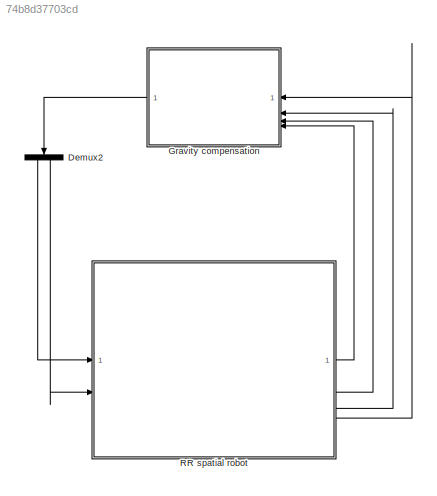
MODEL slx_74b8d37703cd
KIND model
CONFIG AbsTol = auto
CONFIG EnableMultiTasking = off
CONFIG FixedStep = auto
CONFIG MaxStep = auto
CONFIG MinStep = auto
CONFIG RelTol = 1e-3
CONFIG SampleTimeConstraint = Unconstrained
CONFIG SolverName = VariableStepAuto
CONFIG StartTime = 0.0
CONFIG StopTime = 10.0
BLOCK [Demux] Demux2
  NameLocation = left
  Outputs = 2
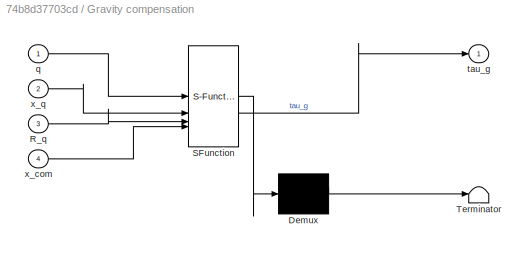
BLOCK [SubSystem] Gravity compensation
  ErrorFcn = Stateflow.Translate.translate
  PermitHierarchicalResolution = ExplicitOnly
  SFBlockType = MATLAB Function
  TreatAsAtomicUnit = on
BLOCK [Demux] Gravity compensation/ Demux 
  Outputs = 1
BLOCK [S-Function] Gravity compensation/ SFunction 
  EnableBusSupport = on
  FunctionName = sf_sfun
  PortCounts = [4 2]
  SFcnIsStateOwnerBlock = off
  SFunctionDeploymentMode = off
  Tag = Stateflow S-Function 3
BLOCK [Terminator] Gravity compensation/ Terminator 
BLOCK [Inport] Gravity compensation/R_q
  Port = 3
BLOCK [Inport] Gravity compensation/q
BLOCK [Outport] Gravity compensation/tau_g
BLOCK [Inport] Gravity compensation/x_com
  Port = 4
BLOCK [Inport] Gravity compensation/x_q
  Port = 2
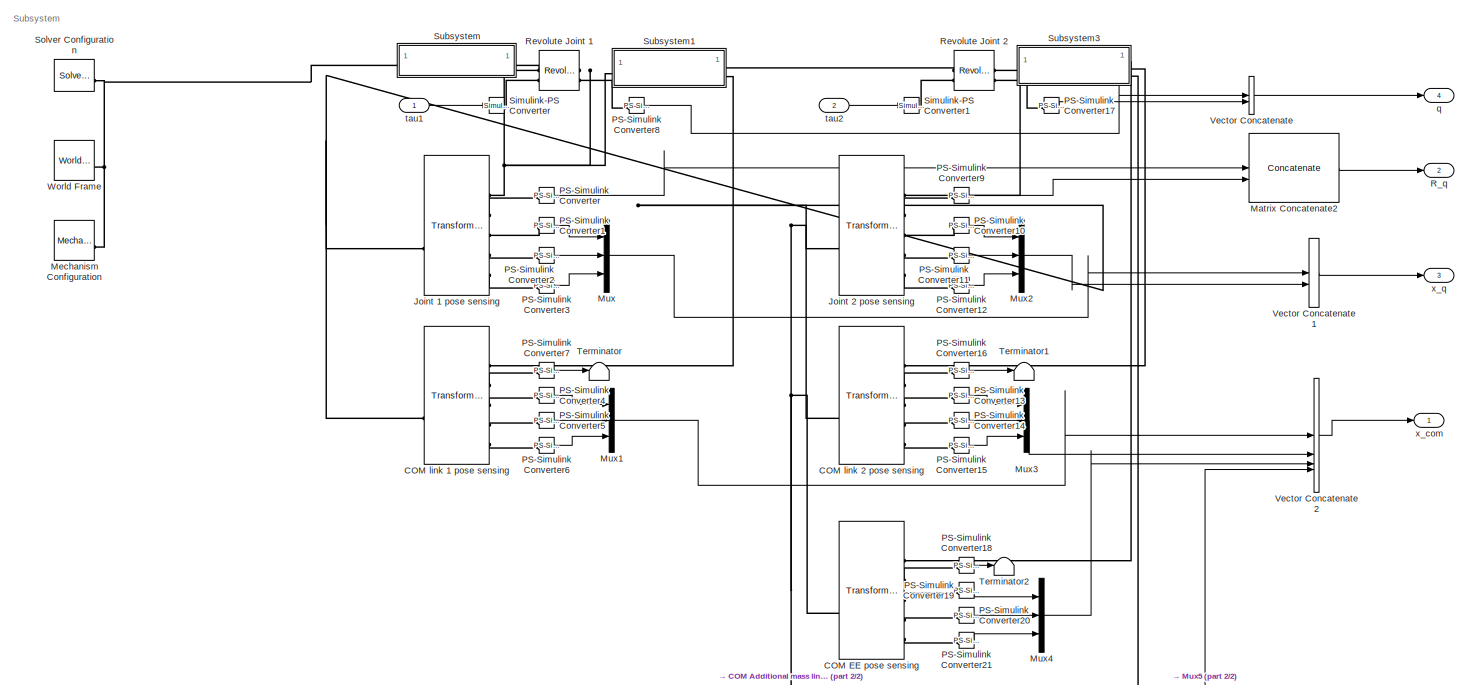
[diagram: RR spatial robot - part 1/2, most of the canvas]
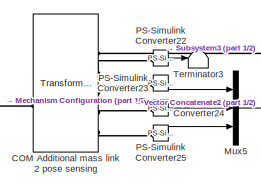
[diagram: RR spatial robot - part 2/2, bottom center region]
BLOCK [SubSystem] RR spatial robot
BLOCK [Reference] RR spatial robot/COM Additional mass link 2 pose sensing  REF=sm_lib/Frames and
Transforms/Transform
Sensor
  SourceBlock = sm_lib/Frames and\nTransforms/Transform\nSensor
  SourceType = Transform\nSensor
BLOCK [Reference] RR spatial robot/COM EE pose sensing  REF=sm_lib/Frames and
Transforms/Transform
Sensor
  SourceBlock = sm_lib/Frames and\nTransforms/Transform\nSensor
  SourceType = Transform\nSensor
BLOCK [Reference] RR spatial robot/COM link 1 pose sensing  REF=sm_lib/Frames and
Transforms/Transform
Sensor
  SourceBlock = sm_lib/Frames and\nTransforms/Transform\nSensor
  SourceType = Transform\nSensor
BLOCK [Reference] RR spatial robot/COM link 2 pose sensing  REF=sm_lib/Frames and
Transforms/Transform
Sensor
  SourceBlock = sm_lib/Frames and\nTransforms/Transform\nSensor
  SourceType = Transform\nSensor
BLOCK [Reference] RR spatial robot/Joint 1 pose sensing  REF=sm_lib/Frames and
Transforms/Transform
Sensor
  SourceBlock = sm_lib/Frames and\nTransforms/Transform\nSensor
  SourceType = Transform\nSensor
BLOCK [Reference] RR spatial robot/Joint 2 pose sensing  REF=sm_lib/Frames and
Transforms/Transform
Sensor
  SourceBlock = sm_lib/Frames and\nTransforms/Transform\nSensor
  SourceType = Transform\nSensor
BLOCK [Concatenate] RR spatial robot/Matrix Concatenate2
  ConcatenateDimension = 3
  Mode = Multidimensional array
BLOCK [Reference] RR spatial robot/Mechanism Configuration  REF=sm_lib/Utilities/Mechanism
Configuration
  SourceBlock = sm_lib/Utilities/Mechanism\nConfiguration
  SourceType = Mechanism\nConfiguration
BLOCK [Mux] RR spatial robot/Mux
  DisplayOption = bar
  Inputs = 3
BLOCK [Mux] RR spatial robot/Mux1
  DisplayOption = bar
  Inputs = 3
BLOCK [Mux] RR spatial robot/Mux2
  DisplayOption = bar
  Inputs = 3
BLOCK [Mux] RR spatial robot/Mux3
  DisplayOption = bar
  Inputs = 3
BLOCK [Mux] RR spatial robot/Mux4
  DisplayOption = bar
  Inputs = 3
BLOCK [Mux] RR spatial robot/Mux5
  DisplayOption = bar
  Inputs = 3
BLOCK [Reference] RR spatial robot/PS-Simulink Converter  REF=nesl_utility/PS-Simulink
Converter
  SourceBlock = nesl_utility/PS-Simulink\nConverter
  SourceType = PS-Simulink\nConverter
BLOCK [Reference] RR spatial robot/PS-Simulink Converter1  REF=nesl_utility/PS-Simulink
Converter
  SourceBlock = nesl_utility/PS-Simulink\nConverter
  SourceType = PS-Simulink\nConverter
BLOCK [Reference] RR spatial robot/PS-Simulink Converter10  REF=nesl_utility/PS-Simulink
Converter
  SourceBlock = nesl_utility/PS-Simulink\nConverter
  SourceType = PS-Simulink\nConverter
BLOCK [Reference] RR spatial robot/PS-Simulink Converter11  REF=nesl_utility/PS-Simulink
Converter
  SourceBlock = nesl_utility/PS-Simulink\nConverter
  SourceType = PS-Simulink\nConverter
BLOCK [Reference] RR spatial robot/PS-Simulink Converter12  REF=nesl_utility/PS-Simulink
Converter
  SourceBlock = nesl_utility/PS-Simulink\nConverter
  SourceType = PS-Simulink\nConverter
BLOCK [Reference] RR spatial robot/PS-Simulink Converter13  REF=nesl_utility/PS-Simulink
Converter
  SourceBlock = nesl_utility/PS-Simulink\nConverter
  SourceType = PS-Simulink\nConverter
BLOCK [Reference] RR spatial robot/PS-Simulink Converter14  REF=nesl_utility/PS-Simulink
Converter
  SourceBlock = nesl_utility/PS-Simulink\nConverter
  SourceType = PS-Simulink\nConverter
BLOCK [Reference] RR spatial robot/PS-Simulink Converter15  REF=nesl_utility/PS-Simulink
Converter
  SourceBlock = nesl_utility/PS-Simulink\nConverter
  SourceType = PS-Simulink\nConverter
BLOCK [Reference] RR spatial robot/PS-Simulink Converter16  REF=nesl_utility/PS-Simulink
Converter
  SourceBlock = nesl_utility/PS-Simulink\nConverter
  SourceType = PS-Simulink\nConverter
BLOCK [Reference] RR spatial robot/PS-Simulink Converter17  REF=nesl_utility/PS-Simulink
Converter
  SourceBlock = nesl_utility/PS-Simulink\nConverter
  SourceType = PS-Simulink\nConverter
BLOCK [Reference] RR spatial robot/PS-Simulink Converter18  REF=nesl_utility/PS-Simulink
Converter
  SourceBlock = nesl_utility/PS-Simulink\nConverter
  SourceType = PS-Simulink\nConverter
BLOCK [Reference] RR spatial robot/PS-Simulink Converter19  REF=nesl_utility/PS-Simulink
Converter
  SourceBlock = nesl_utility/PS-Simulink\nConverter
  SourceType = PS-Simulink\nConverter
BLOCK [Reference] RR spatial robot/PS-Simulink Converter2  REF=nesl_utility/PS-Simulink
Converter
  SourceBlock = nesl_utility/PS-Simulink\nConverter
  SourceType = PS-Simulink\nConverter
BLOCK [Reference] RR spatial robot/PS-Simulink Converter20  REF=nesl_utility/PS-Simulink
Converter
  SourceBlock = nesl_utility/PS-Simulink\nConverter
  SourceType = PS-Simulink\nConverter
BLOCK [Reference] RR spatial robot/PS-Simulink Converter21  REF=nesl_utility/PS-Simulink
Converter
  SourceBlock = nesl_utility/PS-Simulink\nConverter
  SourceType = PS-Simulink\nConverter
BLOCK [Reference] RR spatial robot/PS-Simulink Converter22  REF=nesl_utility/PS-Simulink
Converter
  SourceBlock = nesl_utility/PS-Simulink\nConverter
  SourceType = PS-Simulink\nConverter
BLOCK [Reference] RR spatial robot/PS-Simulink Converter23  REF=nesl_utility/PS-Simulink
Converter
  SourceBlock = nesl_utility/PS-Simulink\nConverter
  SourceType = PS-Simulink\nConverter
BLOCK [Reference] RR spatial robot/PS-Simulink Converter24  REF=nesl_utility/PS-Simulink
Converter
  SourceBlock = nesl_utility/PS-Simulink\nConverter
  SourceType = PS-Simulink\nConverter
BLOCK [Reference] RR spatial robot/PS-Simulink Converter25  REF=nesl_utility/PS-Simulink
Converter
  SourceBlock = nesl_utility/PS-Simulink\nConverter
  SourceType = PS-Simulink\nConverter
BLOCK [Reference] RR spatial robot/PS-Simulink Converter3  REF=nesl_utility/PS-Simulink
Converter
  SourceBlock = nesl_utility/PS-Simulink\nConverter
  SourceType = PS-Simulink\nConverter
BLOCK [Reference] RR spatial robot/PS-Simulink Converter4  REF=nesl_utility/PS-Simulink
Converter
  SourceBlock = nesl_utility/PS-Simulink\nConverter
  SourceType = PS-Simulink\nConverter
BLOCK [Reference] RR spatial robot/PS-Simulink Converter5  REF=nesl_utility/PS-Simulink
Converter
  SourceBlock = nesl_utility/PS-Simulink\nConverter
  SourceType = PS-Simulink\nConverter
BLOCK [Reference] RR spatial robot/PS-Simulink Converter6  REF=nesl_utility/PS-Simulink
Converter
  SourceBlock = nesl_utility/PS-Simulink\nConverter
  SourceType = PS-Simulink\nConverter
BLOCK [Reference] RR spatial robot/PS-Simulink Converter7  REF=nesl_utility/PS-Simulink
Converter
  SourceBlock = nesl_utility/PS-Simulink\nConverter
  SourceType = PS-Simulink\nConverter
BLOCK [Reference] RR spatial robot/PS-Simulink Converter8  REF=nesl_utility/PS-Simulink
Converter
  SourceBlock = nesl_utility/PS-Simulink\nConverter
  SourceType = PS-Simulink\nConverter
BLOCK [Reference] RR spatial robot/PS-Simulink Converter9  REF=nesl_utility/PS-Simulink
Converter
  SourceBlock = nesl_utility/PS-Simulink\nConverter
  SourceType = PS-Simulink\nConverter
BLOCK [Outport] RR spatial robot/R_q
  Port = 2
BLOCK [Reference] RR spatial robot/Revolute Joint 1  REF=sm_lib/Joints/Revolute Joint
  SourceBlock = sm_lib/Joints/Revolute Joint
  SourceType = Revolute Joint
BLOCK [Reference] RR spatial robot/Revolute Joint 2  REF=sm_lib/Joints/Revolute Joint
  SourceBlock = sm_lib/Joints/Revolute Joint
  SourceType = Revolute Joint
BLOCK [Reference] RR spatial robot/Simulink-PS Converter  REF=nesl_utility/Simulink-PS
Converter
  SourceBlock = nesl_utility/Simulink-PS\nConverter
  SourceType = Simulink-PS\nConverter
BLOCK [Reference] RR spatial robot/Simulink-PS Converter1  REF=nesl_utility/Simulink-PS
Converter
  SourceBlock = nesl_utility/Simulink-PS\nConverter
  SourceType = Simulink-PS\nConverter
BLOCK [Reference] RR spatial robot/Solver Configuration  REF=nesl_utility/Solver
Configuration
  SourceBlock = nesl_utility/Solver\nConfiguration
  SourceType = Solver\nConfiguration
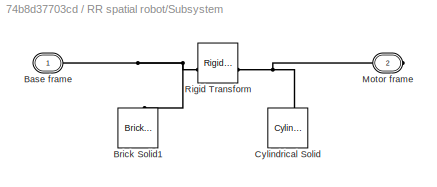
BLOCK [SubSystem] RR spatial robot/Subsystem
BLOCK [PMIOPort] RR spatial robot/Subsystem/Base frame
  Side = Left
BLOCK [Reference] RR spatial robot/Subsystem/Brick Solid1  REF=sm_lib/Body Elements/Brick Solid
  NameLocation = right
  SourceBlock = sm_lib/Body Elements/Brick Solid
  SourceType = Brick Solid
BLOCK [Reference] RR spatial robot/Subsystem/Cylindrical Solid  REF=sm_lib/Body Elements/Cylindrical Solid
  NameLocation = right
  SourceBlock = sm_lib/Body Elements/Cylindrical Solid
  SourceType = Cylindrical Solid
BLOCK [PMIOPort] RR spatial robot/Subsystem/Motor frame
  Port = 2
  Side = Right
BLOCK [Reference] RR spatial robot/Subsystem/Rigid Transform  REF=sm_lib/Frames and
Transforms/Rigid
Transform
  SourceBlock = sm_lib/Frames and\nTransforms/Rigid\nTransform
  SourceType = Rigid\nTransform
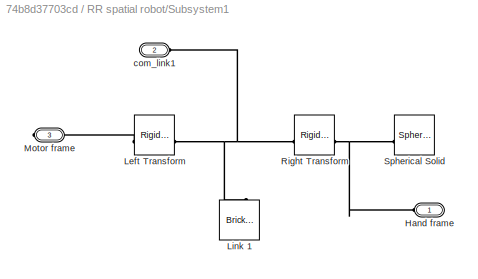
BLOCK [SubSystem] RR spatial robot/Subsystem1
  NameLocation = top
BLOCK [PMIOPort] RR spatial robot/Subsystem1/Hand frame
  Side = Left
BLOCK [Reference] RR spatial robot/Subsystem1/Left Transform  REF=sm_lib/Frames and
Transforms/Rigid
Transform
  SourceBlock = sm_lib/Frames and\nTransforms/Rigid\nTransform
  SourceType = Rigid\nTransform
BLOCK [Reference] RR spatial robot/Subsystem1/Link 1  REF=sm_lib/Body Elements/Brick Solid
  NameLocation = right
  SourceBlock = sm_lib/Body Elements/Brick Solid
  SourceType = Brick Solid
BLOCK [PMIOPort] RR spatial robot/Subsystem1/Motor frame
  Port = 3
  Side = Right
BLOCK [Reference] RR spatial robot/Subsystem1/Right Transform  REF=sm_lib/Frames and
Transforms/Rigid
Transform
  SourceBlock = sm_lib/Frames and\nTransforms/Rigid\nTransform
  SourceType = Rigid\nTransform
BLOCK [Reference] RR spatial robot/Subsystem1/Spherical Solid  REF=sm_lib/Body Elements/Spherical Solid
  SourceBlock = sm_lib/Body Elements/Spherical Solid
  SourceType = Spherical Solid
BLOCK [PMIOPort] RR spatial robot/Subsystem1/com_link1
  Port = 2
  Side = Left
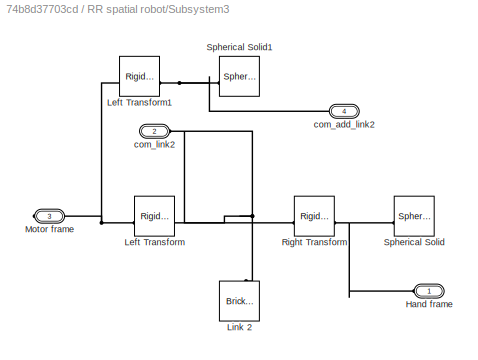
BLOCK [SubSystem] RR spatial robot/Subsystem3
  NameLocation = top
BLOCK [PMIOPort] RR spatial robot/Subsystem3/Hand frame
  Side = Left
BLOCK [Reference] RR spatial robot/Subsystem3/Left Transform  REF=sm_lib/Frames and
Transforms/Rigid
Transform
  SourceBlock = sm_lib/Frames and\nTransforms/Rigid\nTransform
  SourceType = Rigid\nTransform
BLOCK [Reference] RR spatial robot/Subsystem3/Left Transform1  REF=sm_lib/Frames and
Transforms/Rigid
Transform
  SourceBlock = sm_lib/Frames and\nTransforms/Rigid\nTransform
  SourceType = Rigid\nTransform
BLOCK [Reference] RR spatial robot/Subsystem3/Link 2  REF=sm_lib/Body Elements/Brick Solid
  NameLocation = right
  SourceBlock = sm_lib/Body Elements/Brick Solid
  SourceType = Brick Solid
BLOCK [PMIOPort] RR spatial robot/Subsystem3/Motor frame
  Port = 3
  Side = Right
BLOCK [Reference] RR spatial robot/Subsystem3/Right Transform  REF=sm_lib/Frames and
Transforms/Rigid
Transform
  SourceBlock = sm_lib/Frames and\nTransforms/Rigid\nTransform
  SourceType = Rigid\nTransform
BLOCK [Reference] RR spatial robot/Subsystem3/Spherical Solid  REF=sm_lib/Body Elements/Spherical Solid
  SourceBlock = sm_lib/Body Elements/Spherical Solid
  SourceType = Spherical Solid
BLOCK [Reference] RR spatial robot/Subsystem3/Spherical Solid1  REF=sm_lib/Body Elements/Spherical Solid
  SourceBlock = sm_lib/Body Elements/Spherical Solid
  SourceType = Spherical Solid
BLOCK [PMIOPort] RR spatial robot/Subsystem3/com_add_link2
  Port = 4
  Side = Left
BLOCK [PMIOPort] RR spatial robot/Subsystem3/com_link2
  Port = 2
  Side = Left
BLOCK [Terminator] RR spatial robot/Terminator
BLOCK [Terminator] RR spatial robot/Terminator1
BLOCK [Terminator] RR spatial robot/Terminator2
BLOCK [Terminator] RR spatial robot/Terminator3
BLOCK [Concatenate] RR spatial robot/Vector Concatenate
  ConcatenateDimension = 2
  Mode = Multidimensional array
BLOCK [Concatenate] RR spatial robot/Vector Concatenate1
  ConcatenateDimension = 2
  Mode = Multidimensional array
BLOCK [Concatenate] RR spatial robot/Vector Concatenate2
  ConcatenateDimension = 2
  Mode = Multidimensional array
  NumInputs = 4
BLOCK [Reference] RR spatial robot/World Frame  REF=sm_lib/Frames and
Transforms/World Frame
  SourceBlock = sm_lib/Frames and\nTransforms/World Frame
  SourceType = World Frame
BLOCK [Outport] RR spatial robot/q
  Port = 4
BLOCK [Inport] RR spatial robot/tau1
BLOCK [Inport] RR spatial robot/tau2
  Port = 2
BLOCK [Outport] RR spatial robot/x_com
BLOCK [Outport] RR spatial robot/x_q
  Port = 3
ANNOTATION RR spatial robot: Subsystem
LINE Demux2:1 -> RR spatial robot:1
LINE Demux2:2 -> RR spatial robot:2
LINE Gravity compensation:1 -> Demux2:1
LINE RR spatial robot/Matrix Concatenate2:1 -> RR spatial robot/R_q:1
LINE RR spatial robot/Mux1:1 -> RR spatial robot/Vector Concatenate2:1
LINE RR spatial robot/Mux2:1 -> RR spatial robot/Vector Concatenate1:2
LINE RR spatial robot/Mux3:1 -> RR spatial robot/Vector Concatenate2:2
LINE RR spatial robot/Mux4:1 -> RR spatial robot/Vector Concatenate2:3
LINE RR spatial robot/Mux5:1 -> RR spatial robot/Vector Concatenate2:4
LINE RR spatial robot/Mux:1 -> RR spatial robot/Vector Concatenate1:1
LINE RR spatial robot/PS-Simulink Converter10:1 -> RR spatial robot/Mux2:1
LINE RR spatial robot/PS-Simulink Converter11:1 -> RR spatial robot/Mux2:2
LINE RR spatial robot/PS-Simulink Converter12:1 -> RR spatial robot/Mux2:3
LINE RR spatial robot/PS-Simulink Converter13:1 -> RR spatial robot/Mux3:1
LINE RR spatial robot/PS-Simulink Converter14:1 -> RR spatial robot/Mux3:2
LINE RR spatial robot/PS-Simulink Converter15:1 -> RR spatial robot/Mux3:3
LINE RR spatial robot/PS-Simulink Converter16:1 -> RR spatial robot/Terminator1:1
LINE RR spatial robot/PS-Simulink Converter17:1 -> RR spatial robot/Vector Concatenate:2
LINE RR spatial robot/PS-Simulink Converter18:1 -> RR spatial robot/Terminator2:1
LINE RR spatial robot/PS-Simulink Converter19:1 -> RR spatial robot/Mux4:1
LINE RR spatial robot/PS-Simulink Converter1:1 -> RR spatial robot/Mux:1
LINE RR spatial robot/PS-Simulink Converter20:1 -> RR spatial robot/Mux4:2
LINE RR spatial robot/PS-Simulink Converter21:1 -> RR spatial robot/Mux4:3
LINE RR spatial robot/PS-Simulink Converter22:1 -> RR spatial robot/Terminator3:1
LINE RR spatial robot/PS-Simulink Converter23:1 -> RR spatial robot/Mux5:1
LINE RR spatial robot/PS-Simulink Converter24:1 -> RR spatial robot/Mux5:2
LINE RR spatial robot/PS-Simulink Converter25:1 -> RR spatial robot/Mux5:3
LINE RR spatial robot/PS-Simulink Converter2:1 -> RR spatial robot/Mux:2
LINE RR spatial robot/PS-Simulink Converter3:1 -> RR spatial robot/Mux:3
LINE RR spatial robot/PS-Simulink Converter4:1 -> RR spatial robot/Mux1:1
LINE RR spatial robot/PS-Simulink Converter5:1 -> RR spatial robot/Mux1:2
LINE RR spatial robot/PS-Simulink Converter6:1 -> RR spatial robot/Mux1:3
LINE RR spatial robot/PS-Simulink Converter7:1 -> RR spatial robot/Terminator:1
LINE RR spatial robot/PS-Simulink Converter8:1 -> RR spatial robot/Vector Concatenate:1
LINE RR spatial robot/PS-Simulink Converter9:1 -> RR spatial robot/Matrix Concatenate2:2
LINE RR spatial robot/PS-Simulink Converter:1 -> RR spatial robot/Matrix Concatenate2:1
LINE RR spatial robot/Vector Concatenate1:1 -> RR spatial robot/x_q:1
LINE RR spatial robot/Vector Concatenate2:1 -> RR spatial robot/x_com:1
LINE RR spatial robot/Vector Concatenate:1 -> RR spatial robot/q:1
LINE RR spatial robot/tau1:1 -> RR spatial robot/Simulink-PS Converter:1
LINE RR spatial robot/tau2:1 -> RR spatial robot/Simulink-PS Converter1:1
LINE RR spatial robot:1 -> Gravity compensation:4
LINE RR spatial robot:2 -> Gravity compensation:3
LINE RR spatial robot:3 -> Gravity compensation:2
LINE RR spatial robot:4 -> Gravity compensation:1
PNET net1: RR spatial robot/COM Additional mass link 2 pose sensing:LConn1 -- RR spatial robot/COM EE pose sensing:LConn1 -- RR spatial robot/COM link 1 pose sensing:LConn1 -- RR spatial robot/COM link 2 pose sensing:LConn1 -- RR spatial robot/Joint 1 pose sensing:LConn1 -- RR spatial robot/Joint 2 pose sensing:LConn1 -- RR spatial robot/Mechanism Configuration:RConn1 -- RR spatial robot/Solver Configuration:RConn1 -- RR spatial robot/Subsystem:LConn1 -- RR spatial robot/World Frame:RConn1
PLINE RR spatial robot/COM Additional mass link 2 pose sensing:RConn1 -- RR spatial robot/Subsystem3:LConn3
PLINE RR spatial robot/COM Additional mass link 2 pose sensing:RConn2 -- RR spatial robot/PS-Simulink Converter22:LConn1
PLINE RR spatial robot/COM Additional mass link 2 pose sensing:RConn3 -- RR spatial robot/PS-Simulink Converter23:LConn1
PLINE RR spatial robot/COM Additional mass link 2 pose sensing:RConn4 -- RR spatial robot/PS-Simulink Converter24:LConn1
PLINE RR spatial robot/COM Additional mass link 2 pose sensing:RConn5 -- RR spatial robot/PS-Simulink Converter25:LConn1
PLINE RR spatial robot/COM EE pose sensing:RConn1 -- RR spatial robot/Subsystem3:LConn1
PLINE RR spatial robot/COM EE pose sensing:RConn2 -- RR spatial robot/PS-Simulink Converter18:LConn1
PLINE RR spatial robot/COM EE pose sensing:RConn3 -- RR spatial robot/PS-Simulink Converter19:LConn1
PLINE RR spatial robot/COM EE pose sensing:RConn4 -- RR spatial robot/PS-Simulink Converter20:LConn1
PLINE RR spatial robot/COM EE pose sensing:RConn5 -- RR spatial robot/PS-Simulink Converter21:LConn1
PLINE RR spatial robot/COM link 1 pose sensing:RConn1 -- RR spatial robot/Subsystem1:LConn2
PLINE RR spatial robot/COM link 1 pose sensing:RConn2 -- RR spatial robot/PS-Simulink Converter7:LConn1
PLINE RR spatial robot/COM link 1 pose sensing:RConn3 -- RR spatial robot/PS-Simulink Converter4:LConn1
PLINE RR spatial robot/COM link 1 pose sensing:RConn4 -- RR spatial robot/PS-Simulink Converter5:LConn1
PLINE RR spatial robot/COM link 1 pose sensing:RConn5 -- RR spatial robot/PS-Simulink Converter6:LConn1
PLINE RR spatial robot/COM link 2 pose sensing:RConn1 -- RR spatial robot/Subsystem3:LConn2
PLINE RR spatial robot/COM link 2 pose sensing:RConn2 -- RR spatial robot/PS-Simulink Converter16:LConn1
PLINE RR spatial robot/COM link 2 pose sensing:RConn3 -- RR spatial robot/PS-Simulink Converter13:LConn1
PLINE RR spatial robot/COM link 2 pose sensing:RConn4 -- RR spatial robot/PS-Simulink Converter14:LConn1
PLINE RR spatial robot/COM link 2 pose sensing:RConn5 -- RR spatial robot/PS-Simulink Converter15:LConn1
PNET net2: RR spatial robot/Joint 1 pose sensing:RConn1 -- RR spatial robot/Revolute Joint 1:RConn1 -- RR spatial robot/Subsystem1:RConn1
PLINE RR spatial robot/Joint 1 pose sensing:RConn2 -- RR spatial robot/PS-Simulink Converter:LConn1
PLINE RR spatial robot/Joint 1 pose sensing:RConn3 -- RR spatial robot/PS-Simulink Converter1:LConn1
PLINE RR spatial robot/Joint 1 pose sensing:RConn4 -- RR spatial robot/PS-Simulink Converter2:LConn1
PLINE RR spatial robot/Joint 1 pose sensing:RConn5 -- RR spatial robot/PS-Simulink Converter3:LConn1
PNET net3: RR spatial robot/Joint 2 pose sensing:RConn1 -- RR spatial robot/Revolute Joint 2:RConn1 -- RR spatial robot/Subsystem3:RConn1
PLINE RR spatial robot/Joint 2 pose sensing:RConn2 -- RR spatial robot/PS-Simulink Converter9:LConn1
PLINE RR spatial robot/Joint 2 pose sensing:RConn3 -- RR spatial robot/PS-Simulink Converter10:LConn1
PLINE RR spatial robot/Joint 2 pose sensing:RConn4 -- RR spatial robot/PS-Simulink Converter11:LConn1
PLINE RR spatial robot/Joint 2 pose sensing:RConn5 -- RR spatial robot/PS-Simulink Converter12:LConn1
PLINE RR spatial robot/PS-Simulink Converter17:LConn1 -- RR spatial robot/Revolute Joint 2:RConn2
PLINE RR spatial robot/PS-Simulink Converter8:LConn1 -- RR spatial robot/Revolute Joint 1:RConn2
PLINE RR spatial robot/Revolute Joint 1:LConn1 -- RR spatial robot/Subsystem:RConn1
PLINE RR spatial robot/Revolute Joint 1:LConn2 -- RR spatial robot/Simulink-PS Converter:RConn1
PLINE RR spatial robot/Revolute Joint 2:LConn1 -- RR spatial robot/Subsystem1:LConn1
PLINE RR spatial robot/Revolute Joint 2:LConn2 -- RR spatial robot/Simulink-PS Converter1:RConn1
PNET net4: RR spatial robot/Subsystem/Base frame:RConn1 -- RR spatial robot/Subsystem/Brick Solid1:RConn1 -- RR spatial robot/Subsystem/Rigid Transform:LConn1
PNET net5: RR spatial robot/Subsystem/Cylindrical Solid:RConn1 -- RR spatial robot/Subsystem/Motor frame:RConn1 -- RR spatial robot/Subsystem/Rigid Transform:RConn1
PNET net6: RR spatial robot/Subsystem1/Hand frame:RConn1 -- RR spatial robot/Subsystem1/Right Transform:RConn1 -- RR spatial robot/Subsystem1/Spherical Solid:RConn1
PLINE RR spatial robot/Subsystem1/Left Transform:LConn1 -- RR spatial robot/Subsystem1/Motor frame:RConn1
PNET net7: RR spatial robot/Subsystem1/Left Transform:RConn1 -- RR spatial robot/Subsystem1/Link 1:RConn1 -- RR spatial robot/Subsystem1/Right Transform:LConn1 -- RR spatial robot/Subsystem1/com_link1:RConn1
PNET net8: RR spatial robot/Subsystem3/Hand frame:RConn1 -- RR spatial robot/Subsystem3/Right Transform:RConn1 -- RR spatial robot/Subsystem3/Spherical Solid:RConn1
PNET net9: RR spatial robot/Subsystem3/Left Transform1:LConn1 -- RR spatial robot/Subsystem3/Left Transform:LConn1 -- RR spatial robot/Subsystem3/Motor frame:RConn1
PNET net10: RR spatial robot/Subsystem3/Left Transform1:RConn1 -- RR spatial robot/Subsystem3/Spherical Solid1:RConn1 -- RR spatial robot/Subsystem3/com_add_link2:RConn1
PNET net11: RR spatial robot/Subsystem3/Left Transform:RConn1 -- RR spatial robot/Subsystem3/Link 2:RConn1 -- RR spatial robot/Subsystem3/Right Transform:LConn1 -- RR spatial robot/Subsystem3/com_link2:RConn1
note: PNET lines group multi-terminal physical nets as a canonical sorted terminal list (undirected conserving connections); 2-terminal nets keep the pairwise PLINE form
CHART Gravity compensation states=1 transitions=1
  STATE_LABEL 'eML_blk_kernel()'
  STATE_LABEL "SCRIPT:\nfunction tau_g  = fcn(q, x_q, R_q, x_com)\n\n    jointType = [0,0];\n    m1 = 2; % mass of link 1\n    m2 = 6.5; % mass of link 2\n    m3 = 4.8; % end effector\n    m4 = 2.2; % additional mass on link 2\n    m = [m1+m2+m3+m4,m2+m3+m4];\n\n    x_com(:,1) = (x_com(:,1)*m1 + x_com(:,2)*m2 + x_com(:,3)*m3 + x_com(:,4)*m4)/(m(1)) - x_q(:,1); % = [0,0,0]' because the link 1 is orthogonal w.r.t. gravity\n ...<+1324ch>"
CHART  states=0 transitions=0
